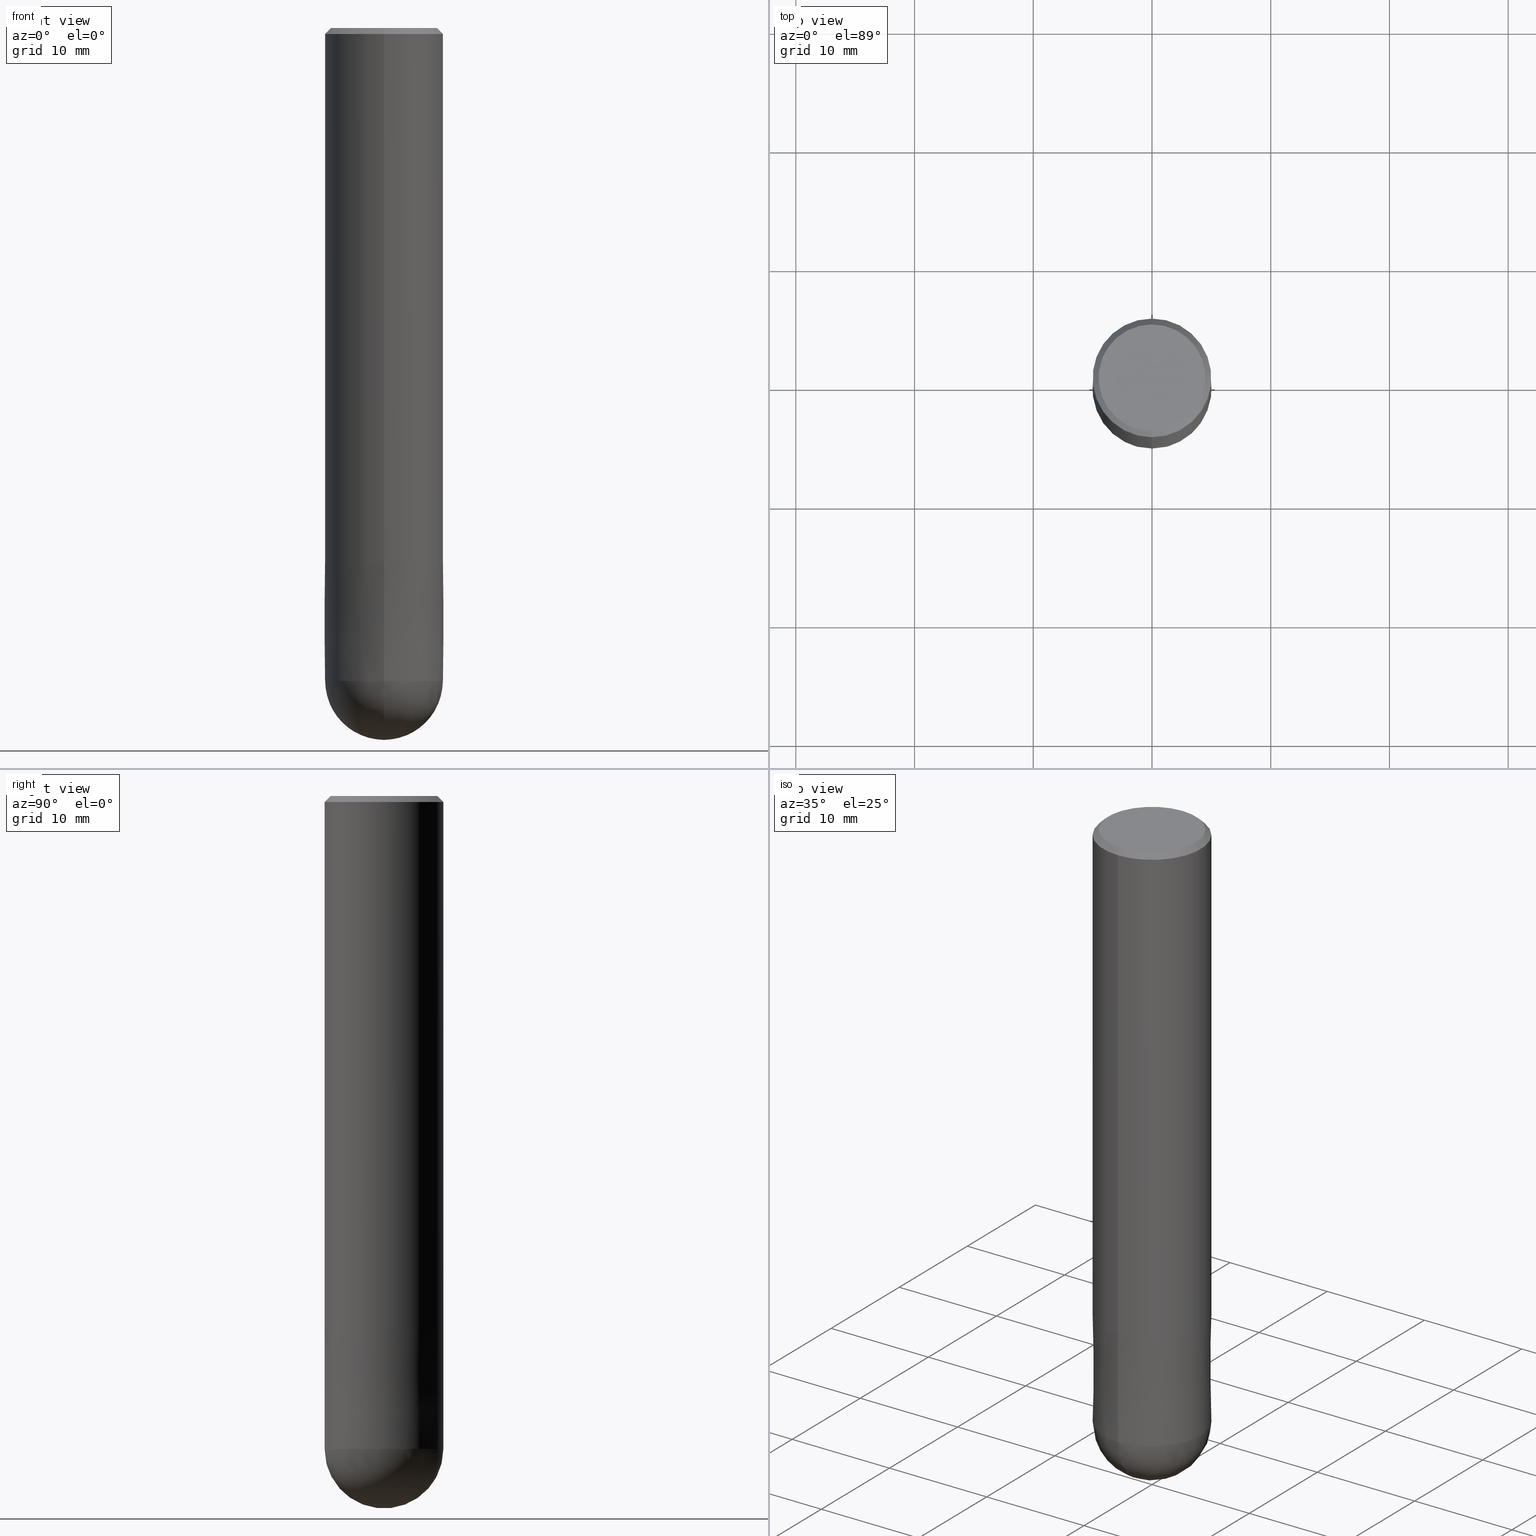
[diagram: canonical four-view strip — front | top / right | iso, engineering-drawing reading convention]
A machine part, canonical four-view strip (front | top / right | iso — engineering-drawing reading convention). The complete STEP part file that produces these views, byte-faithful:
ISO-10303-21;
HEADER;
FILE_DESCRIPTION(('no description'),'unknown implementation level');
FILE_NAME('HFB4100-1500S-Huellk.stp','  ',('CIMSOURCE GmbH'),('CADClick - KiM GmbH - www.kimweb.de'),'unknown preprocess','ACIS','unknown authorization');
FILE_SCHEMA(('automotive_design'));
ENDSEC;
DATA;
#1=MECHANICAL_DESIGN_GEOMETRIC_PRESENTATION_REPRESENTATION(' ',(#10,#11,#12,#13,#14,#15,#16,#17,#18,#19,#20,#21,#22,#23,#24,#25,#26,#27,#28,#29,#30,#31,#32,#33,#34,#35,#36,#37,#38,#39,#40,#41,#42,#43,#44,#45,#46,#47),#6);
#2=PRODUCT_DEFINITION_CONTEXT('',#48,'design');
#3=APPLICATION_PROTOCOL_DEFINITION('INTERNATIONAL STANDARD','automotive_design',1994,#48);
#4=PRODUCT_CATEGORY_RELATIONSHIP('NONE','NONE',#49,#50);
#5=SHAPE_DEFINITION_REPRESENTATION(#51,#52);
#6= (GEOMETRIC_REPRESENTATION_CONTEXT(3)GLOBAL_UNCERTAINTY_ASSIGNED_CONTEXT((#55))GLOBAL_UNIT_ASSIGNED_CONTEXT((#57,#58,#59))REPRESENTATION_CONTEXT('NONE','WORKSPACE'));
#10=STYLED_ITEM('',(#61),#62);
#11=STYLED_ITEM('',(#63),#64);
#12=STYLED_ITEM('',(#65),#66);
#13=STYLED_ITEM('',(#67),#68);
#14=STYLED_ITEM('',(#69),#70);
#15=STYLED_ITEM('',(#71),#72);
#16=STYLED_ITEM('',(#73),#74);
#17=STYLED_ITEM('',(#75),#76);
#18=STYLED_ITEM('',(#77),#78);
#19=STYLED_ITEM('',(#79),#80);
#20=STYLED_ITEM('',(#81),#82);
#21=STYLED_ITEM('',(#83),#84);
#22=STYLED_ITEM('',(#85),#86);
#23=STYLED_ITEM('',(#87),#88);
#24=STYLED_ITEM('',(#89),#90);
#25=STYLED_ITEM('',(#91),#92);
#26=STYLED_ITEM('',(#93),#94);
#27=STYLED_ITEM('',(#95),#96);
#28=STYLED_ITEM('',(#97),#98);
#29=STYLED_ITEM('',(#99),#100);
#30=STYLED_ITEM('',(#101),#102);
#31=STYLED_ITEM('',(#103),#104);
#32=STYLED_ITEM('',(#105),#106);
#33=STYLED_ITEM('',(#107),#108);
#34=STYLED_ITEM('',(#109),#110);
#35=STYLED_ITEM('',(#111),#112);
#36=STYLED_ITEM('',(#113),#114);
#37=STYLED_ITEM('',(#115),#116);
#38=STYLED_ITEM('',(#117),#118);
#39=STYLED_ITEM('',(#119),#120);
#40=STYLED_ITEM('',(#121),#122);
#41=STYLED_ITEM('',(#123),#124);
#42=STYLED_ITEM('',(#125),#126);
#43=STYLED_ITEM('',(#127),#128);
#44=STYLED_ITEM('',(#129),#130);
#45=STYLED_ITEM('',(#131),#132);
#46=STYLED_ITEM('',(#133),#134);
#47=STYLED_ITEM('',(#135),#136);
#48=APPLICATION_CONTEXT(' ');
#49=PRODUCT_CATEGORY('part','NONE');
#50=PRODUCT_RELATED_PRODUCT_CATEGORY('detail',' ',(#137));
#51=PRODUCT_DEFINITION_SHAPE('NONE','NONE',#138);
#52=ADVANCED_BREP_SHAPE_REPRESENTATION('1',(#112,#139),#6);
#55=UNCERTAINTY_MEASURE_WITH_UNIT(LENGTH_MEASURE(1.0E-006),#57,'','');
#57= (CONVERSION_BASED_UNIT('MILLIMETRE',#142)LENGTH_UNIT()NAMED_UNIT(#145));
#58= (NAMED_UNIT(#147)PLANE_ANGLE_UNIT()SI_UNIT($,.RADIAN.));
#59= (NAMED_UNIT(#147)SOLID_ANGLE_UNIT()SI_UNIT($,.STERADIAN.));
#61=PRESENTATION_STYLE_ASSIGNMENT((#153));
#62=EDGE_CURVE('',#124,#88,#154,.T.);
#63=PRESENTATION_STYLE_ASSIGNMENT((#155));
#64=EDGE_CURVE('',#92,#86,#156,.T.);
#65=PRESENTATION_STYLE_ASSIGNMENT((#157));
#66=EDGE_CURVE('',#76,#110,#158,.T.);
#67=PRESENTATION_STYLE_ASSIGNMENT((#159));
#68=EDGE_CURVE('',#110,#76,#160,.T.);
#69=PRESENTATION_STYLE_ASSIGNMENT((#161));
#70=EDGE_CURVE('',#124,#86,#162,.T.);
#71=PRESENTATION_STYLE_ASSIGNMENT((#163));
#72=EDGE_CURVE('',#86,#124,#164,.T.);
#73=PRESENTATION_STYLE_ASSIGNMENT((#165));
#74=EDGE_CURVE('',#80,#134,#166,.T.);
#75=PRESENTATION_STYLE_ASSIGNMENT((#167));
#76=VERTEX_POINT('',#168);
#77=PRESENTATION_STYLE_ASSIGNMENT((#169));
#78=EDGE_CURVE('',#92,#88,#170,.T.);
#79=PRESENTATION_STYLE_ASSIGNMENT((#171));
#80=VERTEX_POINT('',#172);
#81=PRESENTATION_STYLE_ASSIGNMENT((#173));
#82=EDGE_CURVE('',#88,#92,#174,.T.);
#83=PRESENTATION_STYLE_ASSIGNMENT((#175));
#84=ADVANCED_FACE('',(#176),#177,.T.);
#85=PRESENTATION_STYLE_ASSIGNMENT((#178));
#86=VERTEX_POINT('',#179);
#87=PRESENTATION_STYLE_ASSIGNMENT((#180));
#88=VERTEX_POINT('',#181);
#89=PRESENTATION_STYLE_ASSIGNMENT((#182));
#90=VERTEX_POINT('',#183);
#91=PRESENTATION_STYLE_ASSIGNMENT((#184));
#92=VERTEX_POINT('',#185);
#93=PRESENTATION_STYLE_ASSIGNMENT((#186));
#94=ADVANCED_FACE('',(#187),#188,.T.);
#95=PRESENTATION_STYLE_ASSIGNMENT((#189));
#96=ADVANCED_FACE('',(#190),#191,.T.);
#97=PRESENTATION_STYLE_ASSIGNMENT((#192));
#98=EDGE_CURVE('',#134,#126,#193,.T.);
#99=PRESENTATION_STYLE_ASSIGNMENT((#194));
#100=EDGE_CURVE('',#110,#92,#195,.T.);
#101=PRESENTATION_STYLE_ASSIGNMENT((#196));
#102=EDGE_CURVE('',#134,#80,#197,.T.);
#103=PRESENTATION_STYLE_ASSIGNMENT((#198));
#104=ADVANCED_FACE('',(#199),#200,.T.);
#105=PRESENTATION_STYLE_ASSIGNMENT((#201));
#106=EDGE_CURVE('',#90,#126,#202,.T.);
#107=PRESENTATION_STYLE_ASSIGNMENT((#203));
#108=ADVANCED_FACE('',(#204),#205,.T.);
#109=PRESENTATION_STYLE_ASSIGNMENT((#206));
#110=VERTEX_POINT('',#207);
#111=PRESENTATION_STYLE_ASSIGNMENT((#208));
#112=MANIFOLD_SOLID_BREP('1',#209);
#113=PRESENTATION_STYLE_ASSIGNMENT((#210));
#114=EDGE_CURVE('',#126,#90,#211,.T.);
#115=PRESENTATION_STYLE_ASSIGNMENT((#212));
#116=EDGE_CURVE('',#90,#126,#213,.T.);
#117=PRESENTATION_STYLE_ASSIGNMENT((#214));
#118=EDGE_CURVE('',#90,#80,#215,.T.);
#119=PRESENTATION_STYLE_ASSIGNMENT((#216));
#120=ADVANCED_FACE('',(#217),#218,.T.);
#121=PRESENTATION_STYLE_ASSIGNMENT((#219));
#122=ADVANCED_FACE('',(#220),#221,.T.);
#123=PRESENTATION_STYLE_ASSIGNMENT((#222));
#124=VERTEX_POINT('',#223);
#125=PRESENTATION_STYLE_ASSIGNMENT((#224));
#126=VERTEX_POINT('',#225);
#127=PRESENTATION_STYLE_ASSIGNMENT((#226));
#128=ADVANCED_FACE('',(#227,#228),#229,.T.);
#129=PRESENTATION_STYLE_ASSIGNMENT((#230));
#130=EDGE_CURVE('',#88,#76,#231,.T.);
#131=PRESENTATION_STYLE_ASSIGNMENT((#232));
#132=ADVANCED_FACE('',(#233),#234,.T.);
#133=PRESENTATION_STYLE_ASSIGNMENT((#235));
#134=VERTEX_POINT('',#236);
#135=PRESENTATION_STYLE_ASSIGNMENT((#237));
#136=ADVANCED_FACE('',(#238),#239,.T.);
#137=PRODUCT('1','1','PART-1-DESC',(#240));
#138=PRODUCT_DEFINITION('NONE','NONE',#241,#2);
#139=AXIS2_PLACEMENT_3D('',#242,#243,#244);
#142=LENGTH_MEASURE_WITH_UNIT(LENGTH_MEASURE(1.0),#245);
#145=DIMENSIONAL_EXPONENTS(1.0,0.0,0.0,0.0,0.0,0.0,0.0);
#147=DIMENSIONAL_EXPONENTS(0.0,0.0,0.0,0.0,0.0,0.0,0.0);
#153=CURVE_STYLE('',#246,POSITIVE_LENGTH_MEASURE(1.0E-006),#247);
#154=LINE('',#248,#249);
#155=CURVE_STYLE('',#250,POSITIVE_LENGTH_MEASURE(1.0E-006),#251);
#156=LINE('',#252,#253);
#157=CURVE_STYLE('',#254,POSITIVE_LENGTH_MEASURE(1.0E-006),#255);
#158=CIRCLE('',#256,5.0);
#159=CURVE_STYLE('',#257,POSITIVE_LENGTH_MEASURE(1.0E-006),#258);
#160=CIRCLE('',#259,5.0);
#161=CURVE_STYLE('',#260,POSITIVE_LENGTH_MEASURE(1.0E-006),#261);
#162=CIRCLE('',#262,4.5);
#163=CURVE_STYLE('',#263,POSITIVE_LENGTH_MEASURE(1.0E-006),#264);
#164=CIRCLE('',#265,4.5);
#165=CURVE_STYLE('',#266,POSITIVE_LENGTH_MEASURE(1.0E-006),#267);
#166=CIRCLE('',#268,4.9999);
#167=POINT_STYLE(' ',#269,POSITIVE_LENGTH_MEASURE(1.0E-006),#270);
#168=CARTESIAN_POINT('',(0.0,5.0,-45.0));
#169=CURVE_STYLE('',#271,POSITIVE_LENGTH_MEASURE(1.0E-006),#272);
#170=CIRCLE('',#273,5.0);
#171=POINT_STYLE(' ',#274,POSITIVE_LENGTH_MEASURE(1.0E-006),#275);
#172=CARTESIAN_POINT('',(6.1229093084765E-016,-4.9999,-45.0));
#173=CURVE_STYLE('',#276,POSITIVE_LENGTH_MEASURE(1.0E-006),#277);
#174=CIRCLE('',#278,5.0);
#175=SURFACE_STYLE_USAGE(.BOTH.,#279);
#176=FACE_OUTER_BOUND('',#280,.T.);
#177=CONICAL_SURFACE('',#281,4.75,0.785398163397448);
#178=POINT_STYLE(' ',#282,POSITIVE_LENGTH_MEASURE(1.0E-006),#283);
#179=CARTESIAN_POINT('',(5.5107285922007E-016,-4.5,0.0));
#180=POINT_STYLE(' ',#284,POSITIVE_LENGTH_MEASURE(1.0E-006),#285);
#181=CARTESIAN_POINT('',(0.0,5.0,-0.5));
#182=POINT_STYLE(' ',#286,POSITIVE_LENGTH_MEASURE(1.0E-006),#287);
#183=CARTESIAN_POINT('',(6.12303176911188E-016,-5.0,-55.0));
#184=POINT_STYLE(' ',#288,POSITIVE_LENGTH_MEASURE(1.0E-006),#289);
#185=CARTESIAN_POINT('',(6.12303176911189E-016,-5.0,-0.5));
#186=SURFACE_STYLE_USAGE(.BOTH.,#290);
#187=FACE_OUTER_BOUND('',#291,.T.);
#188=CONICAL_SURFACE('',#292,4.99995,9.99999999973218E-006);
#189=SURFACE_STYLE_USAGE(.BOTH.,#293);
#190=FACE_OUTER_BOUND('',#294,.T.);
#191=SPHERICAL_SURFACE('',#295,4.99999999999999);
#192=CURVE_STYLE('',#296,POSITIVE_LENGTH_MEASURE(1.0E-006),#297);
#193=LINE('',#298,#299);
#194=CURVE_STYLE('',#300,POSITIVE_LENGTH_MEASURE(1.0E-006),#301);
#195=LINE('',#302,#303);
#196=CURVE_STYLE('',#304,POSITIVE_LENGTH_MEASURE(1.0E-006),#305);
#197=CIRCLE('',#306,4.9999);
#198=SURFACE_STYLE_USAGE(.BOTH.,#307);
#199=FACE_OUTER_BOUND('',#308,.T.);
#200=CONICAL_SURFACE('',#309,4.75,0.785398163397448);
#201=CURVE_STYLE('',#310,POSITIVE_LENGTH_MEASURE(1.0E-006),#311);
#202=CIRCLE('',#312,5.0);
#203=SURFACE_STYLE_USAGE(.BOTH.,#313);
#204=FACE_OUTER_BOUND('',#314,.T.);
#205=CYLINDRICAL_SURFACE('',#315,5.0);
#206=POINT_STYLE(' ',#316,POSITIVE_LENGTH_MEASURE(1.0E-006),#317);
#207=CARTESIAN_POINT('',(6.12303176911189E-016,-5.0,-45.0));
#208=SURFACE_STYLE_USAGE(.BOTH.,#318);
#209=CLOSED_SHELL('',(#96,#94,#108,#104,#128,#120,#84,#132,#122,#136));
#210=CURVE_STYLE('',#319,POSITIVE_LENGTH_MEASURE(1.0E-006),#320);
#211=CIRCLE('',#321,5.0);
#212=CURVE_STYLE('',#322,POSITIVE_LENGTH_MEASURE(1.0E-006),#323);
#213=CIRCLE('',#324,4.99999999999999);
#214=CURVE_STYLE('',#325,POSITIVE_LENGTH_MEASURE(1.0E-006),#326);
#215=LINE('',#327,#328);
#216=SURFACE_STYLE_USAGE(.BOTH.,#329);
#217=FACE_OUTER_BOUND('',#330,.T.);
#218=PLANE('',#331);
#219=SURFACE_STYLE_USAGE(.BOTH.,#332);
#220=FACE_OUTER_BOUND('',#333,.T.);
#221=CONICAL_SURFACE('',#334,4.99995,9.99999999973218E-006);
#222=POINT_STYLE(' ',#335,POSITIVE_LENGTH_MEASURE(1.0E-006),#336);
#223=CARTESIAN_POINT('',(0.0,4.5,0.0));
#224=POINT_STYLE(' ',#337,POSITIVE_LENGTH_MEASURE(1.0E-006),#338);
#225=CARTESIAN_POINT('',(0.0,5.0,-55.0));
#226=SURFACE_STYLE_USAGE(.BOTH.,#339);
#227=FACE_OUTER_BOUND('',#340,.T.);
#228=FACE_BOUND('',#341,.T.);
#229=PLANE('',#342);
#230=CURVE_STYLE('',#343,POSITIVE_LENGTH_MEASURE(1.0E-006),#344);
#231=LINE('',#345,#346);
#232=SURFACE_STYLE_USAGE(.BOTH.,#347);
#233=FACE_OUTER_BOUND('',#348,.T.);
#234=CYLINDRICAL_SURFACE('',#349,5.0);
#235=POINT_STYLE(' ',#350,POSITIVE_LENGTH_MEASURE(1.0E-006),#351);
#236=CARTESIAN_POINT('',(0.0,4.9999,-45.0));
#237=SURFACE_STYLE_USAGE(.BOTH.,#352);
#238=FACE_OUTER_BOUND('',#353,.T.);
#239=SPHERICAL_SURFACE('',#354,4.99999999999999);
#240=PRODUCT_CONTEXT('',#48,'mechanical');
#241=PRODUCT_DEFINITION_FORMATION_WITH_SPECIFIED_SOURCE(' ','NONE',#137,.NOT_KNOWN.);
#242=CARTESIAN_POINT('',(0.0,0.0,0.0));
#243=DIRECTION('',(0.0,0.0,1.0));
#244=DIRECTION('',(1.0,0.0,0.0));
#245= (NAMED_UNIT(#145)LENGTH_UNIT()SI_UNIT(.MILLI.,.METRE.));
#246=DRAUGHTING_PRE_DEFINED_CURVE_FONT('continuous');
#247=COLOUR_RGB('',0.498039215803146,0.498039215803146,0.498039215803146);
#248=CARTESIAN_POINT('',(-5.81688018065629E-016,4.75,-0.25));
#249=VECTOR('',#356,1.0);
#250=DRAUGHTING_PRE_DEFINED_CURVE_FONT('continuous');
#251=COLOUR_RGB('',0.498039215803146,0.498039215803146,0.498039215803146);
#252=CARTESIAN_POINT('',(5.81688018065629E-016,-4.75,-0.25));
#253=VECTOR('',#357,1.0);
#254=DRAUGHTING_PRE_DEFINED_CURVE_FONT('continuous');
#255=COLOUR_RGB('',0.498039215803146,0.498039215803146,0.498039215803146);
#256=AXIS2_PLACEMENT_3D('',#358,#359,#360);
#257=DRAUGHTING_PRE_DEFINED_CURVE_FONT('continuous');
#258=COLOUR_RGB('',0.498039215803146,0.498039215803146,0.498039215803146);
#259=AXIS2_PLACEMENT_3D('',#361,#362,#363);
#260=DRAUGHTING_PRE_DEFINED_CURVE_FONT('continuous');
#261=COLOUR_RGB('',0.498039215803146,0.498039215803146,0.498039215803146);
#262=AXIS2_PLACEMENT_3D('',#364,#365,#366);
#263=DRAUGHTING_PRE_DEFINED_CURVE_FONT('continuous');
#264=COLOUR_RGB('',0.498039215803146,0.498039215803146,0.498039215803146);
#265=AXIS2_PLACEMENT_3D('',#367,#368,#369);
#266=DRAUGHTING_PRE_DEFINED_CURVE_FONT('continuous');
#267=COLOUR_RGB('',0.800000011920929,0.800000011920929,0.800000011920929);
#268=AXIS2_PLACEMENT_3D('',#370,#371,#372);
#269=PRE_DEFINED_MARKER('');
#270=COLOUR_RGB('',0.498039215803146,0.498039215803146,0.498039215803146);
#271=DRAUGHTING_PRE_DEFINED_CURVE_FONT('continuous');
#272=COLOUR_RGB('',0.498039215803146,0.498039215803146,0.498039215803146);
#273=AXIS2_PLACEMENT_3D('',#373,#374,#375);
#274=PRE_DEFINED_MARKER('');
#275=COLOUR_RGB('',0.800000011920929,0.800000011920929,0.800000011920929);
#276=DRAUGHTING_PRE_DEFINED_CURVE_FONT('continuous');
#277=COLOUR_RGB('',0.498039215803146,0.498039215803146,0.498039215803146);
#278=AXIS2_PLACEMENT_3D('',#376,#377,#378);
#279=SURFACE_SIDE_STYLE('',(#379));
#280=EDGE_LOOP('',(#380,#381,#382,#383));
#281=AXIS2_PLACEMENT_3D('',#384,#385,#386);
#282=PRE_DEFINED_MARKER('');
#283=COLOUR_RGB('',0.498039215803146,0.498039215803146,0.498039215803146);
#284=PRE_DEFINED_MARKER('');
#285=COLOUR_RGB('',0.498039215803146,0.498039215803146,0.498039215803146);
#286=PRE_DEFINED_MARKER('');
#287=COLOUR_RGB('',0.800000011920929,0.800000011920929,0.800000011920929);
#288=PRE_DEFINED_MARKER('');
#289=COLOUR_RGB('',0.498039215803146,0.498039215803146,0.498039215803146);
#290=SURFACE_SIDE_STYLE('',(#387));
#291=EDGE_LOOP('',(#388,#389,#390,#391));
#292=AXIS2_PLACEMENT_3D('',#392,#393,#394);
#293=SURFACE_SIDE_STYLE('',(#395));
#294=EDGE_LOOP('',(#396,#397));
#295=AXIS2_PLACEMENT_3D('',#398,#399,#400);
#296=DRAUGHTING_PRE_DEFINED_CURVE_FONT('continuous');
#297=COLOUR_RGB('',0.800000011920929,0.800000011920929,0.800000011920929);
#298=CARTESIAN_POINT('',(-6.12297053879419E-016,4.99995,-50.0));
#299=VECTOR('',#401,1.0);
#300=DRAUGHTING_PRE_DEFINED_CURVE_FONT('continuous');
#301=COLOUR_RGB('',0.498039215803146,0.498039215803146,0.498039215803146);
#302=CARTESIAN_POINT('',(6.12303176911189E-016,-5.0,-22.75));
#303=VECTOR('',#402,1.0);
#304=DRAUGHTING_PRE_DEFINED_CURVE_FONT('continuous');
#305=COLOUR_RGB('',0.800000011920929,0.800000011920929,0.800000011920929);
#306=AXIS2_PLACEMENT_3D('',#403,#404,#405);
#307=SURFACE_SIDE_STYLE('',(#406));
#308=EDGE_LOOP('',(#407,#408,#409,#410));
#309=AXIS2_PLACEMENT_3D('',#411,#412,#413);
#310=DRAUGHTING_PRE_DEFINED_CURVE_FONT('continuous');
#311=COLOUR_RGB('',0.800000011920929,0.800000011920929,0.800000011920929);
#312=AXIS2_PLACEMENT_3D('',#414,#415,#416);
#313=SURFACE_SIDE_STYLE('',(#417));
#314=EDGE_LOOP('',(#418,#419,#420,#421));
#315=AXIS2_PLACEMENT_3D('',#422,#423,#424);
#316=PRE_DEFINED_MARKER('');
#317=COLOUR_RGB('',0.498039215803146,0.498039215803146,0.498039215803146);
#318=SURFACE_SIDE_STYLE('',(#425));
#319=DRAUGHTING_PRE_DEFINED_CURVE_FONT('continuous');
#320=COLOUR_RGB('',0.800000011920929,0.800000011920929,0.800000011920929);
#321=AXIS2_PLACEMENT_3D('',#426,#427,#428);
#322=DRAUGHTING_PRE_DEFINED_CURVE_FONT('continuous');
#323=COLOUR_RGB('',0.800000011920929,0.800000011920929,0.800000011920929);
#324=AXIS2_PLACEMENT_3D('',#429,#430,#431);
#325=DRAUGHTING_PRE_DEFINED_CURVE_FONT('continuous');
#326=COLOUR_RGB('',0.800000011920929,0.800000011920929,0.800000011920929);
#327=CARTESIAN_POINT('',(6.12297053879419E-016,-4.99995,-50.0));
#328=VECTOR('',#432,1.0);
#329=SURFACE_SIDE_STYLE('',(#433));
#330=EDGE_LOOP('',(#434,#435));
#331=AXIS2_PLACEMENT_3D('',#436,#437,#438);
#332=SURFACE_SIDE_STYLE('',(#439));
#333=EDGE_LOOP('',(#440,#441,#442,#443));
#334=AXIS2_PLACEMENT_3D('',#444,#445,#446);
#335=PRE_DEFINED_MARKER('');
#336=COLOUR_RGB('',0.498039215803146,0.498039215803146,0.498039215803146);
#337=PRE_DEFINED_MARKER('');
#338=COLOUR_RGB('',0.800000011920929,0.800000011920929,0.800000011920929);
#339=SURFACE_SIDE_STYLE('',(#447));
#340=EDGE_LOOP('',(#448,#449));
#341=EDGE_LOOP('',(#450,#451));
#342=AXIS2_PLACEMENT_3D('',#452,#453,#454);
#343=DRAUGHTING_PRE_DEFINED_CURVE_FONT('continuous');
#344=COLOUR_RGB('',0.498039215803146,0.498039215803146,0.498039215803146);
#345=CARTESIAN_POINT('',(-6.12303176911189E-016,5.0,-22.75));
#346=VECTOR('',#455,1.0);
#347=SURFACE_SIDE_STYLE('',(#456));
#348=EDGE_LOOP('',(#457,#458,#459,#460));
#349=AXIS2_PLACEMENT_3D('',#461,#462,#463);
#350=PRE_DEFINED_MARKER('');
#351=COLOUR_RGB('',0.800000011920929,0.800000011920929,0.800000011920929);
#352=SURFACE_SIDE_STYLE('',(#464));
#353=EDGE_LOOP('',(#465,#466));
#354=AXIS2_PLACEMENT_3D('',#467,#468,#469);
#356=DIRECTION('',(-8.65927457071936E-017,0.707106781186548,-0.707106781186548));
#357=DIRECTION('',(-8.65927457071936E-017,0.707106781186548,0.707106781186548));
#358=CARTESIAN_POINT('',(0.0,0.0,-45.0));
#359=DIRECTION('',(0.0,0.0,-1.0));
#360=DIRECTION('',(0.0,1.0,0.0));
#361=CARTESIAN_POINT('',(0.0,0.0,-45.0));
#362=DIRECTION('',(0.0,0.0,-1.0));
#363=DIRECTION('',(0.0,1.0,0.0));
#364=CARTESIAN_POINT('',(0.0,0.0,0.0));
#365=DIRECTION('',(0.0,0.0,-1.0));
#366=DIRECTION('',(0.0,1.0,0.0));
#367=CARTESIAN_POINT('',(0.0,0.0,0.0));
#368=DIRECTION('',(0.0,0.0,-1.0));
#369=DIRECTION('',(0.0,1.0,0.0));
#370=CARTESIAN_POINT('',(0.0,0.0,-45.0));
#371=DIRECTION('',(0.0,0.0,-1.0));
#372=DIRECTION('',(0.0,1.0,0.0));
#373=CARTESIAN_POINT('',(0.0,0.0,-0.5));
#374=DIRECTION('',(0.0,0.0,-1.0));
#375=DIRECTION('',(0.0,1.0,0.0));
#376=CARTESIAN_POINT('',(0.0,0.0,-0.5));
#377=DIRECTION('',(0.0,0.0,-1.0));
#378=DIRECTION('',(0.0,1.0,0.0));
#379=SURFACE_STYLE_FILL_AREA(#470);
#380=ORIENTED_EDGE('',*,*,#62,.T.);
#381=ORIENTED_EDGE('',*,*,#78,.F.);
#382=ORIENTED_EDGE('',*,*,#64,.T.);
#383=ORIENTED_EDGE('',*,*,#72,.T.);
#384=CARTESIAN_POINT('',(0.0,0.0,-0.25));
#385=DIRECTION('',(0.0,-0.0,-1.0));
#386=DIRECTION('',(0.0,1.0,0.0));
#387=SURFACE_STYLE_FILL_AREA(#471);
#388=ORIENTED_EDGE('',*,*,#98,.F.);
#389=ORIENTED_EDGE('',*,*,#102,.T.);
#390=ORIENTED_EDGE('',*,*,#118,.F.);
#391=ORIENTED_EDGE('',*,*,#114,.F.);
#392=CARTESIAN_POINT('',(0.0,0.0,-50.0));
#393=DIRECTION('',(0.0,-0.0,-1.0));
#394=DIRECTION('',(0.0,1.0,0.0));
#395=SURFACE_STYLE_FILL_AREA(#472);
#396=ORIENTED_EDGE('',*,*,#116,.F.);
#397=ORIENTED_EDGE('',*,*,#106,.T.);
#398=CARTESIAN_POINT('',(0.0,0.0,-55.0));
#399=DIRECTION('',(0.0,1.0,0.0));
#400=DIRECTION('',(0.0,0.0,-1.0));
#401=DIRECTION('',(-1.22460635376917E-021,9.99999999956551E-006,-0.99999999995));
#402=DIRECTION('',(-0.0,-0.0,1.0));
#403=CARTESIAN_POINT('',(0.0,0.0,-45.0));
#404=DIRECTION('',(0.0,0.0,-1.0));
#405=DIRECTION('',(0.0,1.0,0.0));
#406=SURFACE_STYLE_FILL_AREA(#473);
#407=ORIENTED_EDGE('',*,*,#62,.F.);
#408=ORIENTED_EDGE('',*,*,#70,.T.);
#409=ORIENTED_EDGE('',*,*,#64,.F.);
#410=ORIENTED_EDGE('',*,*,#82,.F.);
#411=CARTESIAN_POINT('',(0.0,0.0,-0.25));
#412=DIRECTION('',(0.0,-0.0,-1.0));
#413=DIRECTION('',(0.0,1.0,0.0));
#414=CARTESIAN_POINT('',(0.0,0.0,-55.0));
#415=DIRECTION('',(0.0,0.0,-1.0));
#416=DIRECTION('',(0.0,1.0,0.0));
#417=SURFACE_STYLE_FILL_AREA(#474);
#418=ORIENTED_EDGE('',*,*,#130,.F.);
#419=ORIENTED_EDGE('',*,*,#82,.T.);
#420=ORIENTED_EDGE('',*,*,#100,.F.);
#421=ORIENTED_EDGE('',*,*,#66,.F.);
#422=CARTESIAN_POINT('',(0.0,0.0,-22.75));
#423=DIRECTION('',(-0.0,-0.0,1.0));
#424=DIRECTION('',(0.0,1.0,0.0));
#425=SURFACE_STYLE_FILL_AREA(#475);
#426=CARTESIAN_POINT('',(0.0,0.0,-55.0));
#427=DIRECTION('',(0.0,0.0,-1.0));
#428=DIRECTION('',(0.0,1.0,0.0));
#429=CARTESIAN_POINT('',(0.0,0.0,-55.0));
#430=DIRECTION('',(1.0,0.0,1.22460635382238E-016));
#431=DIRECTION('',(-1.22460635382238E-016,0.0,1.0));
#432=DIRECTION('',(-1.22460635376917E-021,9.99999999956551E-006,0.99999999995));
#433=SURFACE_STYLE_FILL_AREA(#476);
#434=ORIENTED_EDGE('',*,*,#70,.F.);
#435=ORIENTED_EDGE('',*,*,#72,.F.);
#436=CARTESIAN_POINT('',(0.0,2.25,0.0));
#437=DIRECTION('',(-0.0,0.0,1.0));
#438=DIRECTION('',(0.0,-1.0,0.0));
#439=SURFACE_STYLE_FILL_AREA(#477);
#440=ORIENTED_EDGE('',*,*,#98,.T.);
#441=ORIENTED_EDGE('',*,*,#106,.F.);
#442=ORIENTED_EDGE('',*,*,#118,.T.);
#443=ORIENTED_EDGE('',*,*,#74,.T.);
#444=CARTESIAN_POINT('',(0.0,0.0,-50.0));
#445=DIRECTION('',(0.0,-0.0,-1.0));
#446=DIRECTION('',(0.0,1.0,0.0));
#447=SURFACE_STYLE_FILL_AREA(#478);
#448=ORIENTED_EDGE('',*,*,#66,.T.);
#449=ORIENTED_EDGE('',*,*,#68,.T.);
#450=ORIENTED_EDGE('',*,*,#102,.F.);
#451=ORIENTED_EDGE('',*,*,#74,.F.);
#452=CARTESIAN_POINT('',(0.0,2.5,-45.0));
#453=DIRECTION('',(0.0,0.0,-1.0));
#454=DIRECTION('',(0.0,1.0,0.0));
#455=DIRECTION('',(0.0,0.0,-1.0));
#456=SURFACE_STYLE_FILL_AREA(#479);
#457=ORIENTED_EDGE('',*,*,#130,.T.);
#458=ORIENTED_EDGE('',*,*,#68,.F.);
#459=ORIENTED_EDGE('',*,*,#100,.T.);
#460=ORIENTED_EDGE('',*,*,#78,.T.);
#461=CARTESIAN_POINT('',(0.0,0.0,-22.75));
#462=DIRECTION('',(-0.0,-0.0,1.0));
#463=DIRECTION('',(0.0,1.0,0.0));
#464=SURFACE_STYLE_FILL_AREA(#480);
#465=ORIENTED_EDGE('',*,*,#116,.T.);
#466=ORIENTED_EDGE('',*,*,#114,.T.);
#467=CARTESIAN_POINT('',(0.0,0.0,-55.0));
#468=DIRECTION('',(0.0,1.0,0.0));
#469=DIRECTION('',(0.0,0.0,-1.0));
#470=FILL_AREA_STYLE('',(#481));
#471=FILL_AREA_STYLE('',(#482));
#472=FILL_AREA_STYLE('',(#483));
#473=FILL_AREA_STYLE('',(#484));
#474=FILL_AREA_STYLE('',(#485));
#475=FILL_AREA_STYLE('',(#486));
#476=FILL_AREA_STYLE('',(#487));
#477=FILL_AREA_STYLE('',(#488));
#478=FILL_AREA_STYLE('',(#489));
#479=FILL_AREA_STYLE('',(#490));
#480=FILL_AREA_STYLE('',(#491));
#481=FILL_AREA_STYLE_COLOUR('',#492);
#482=FILL_AREA_STYLE_COLOUR('',#493);
#483=FILL_AREA_STYLE_COLOUR('',#494);
#484=FILL_AREA_STYLE_COLOUR('',#495);
#485=FILL_AREA_STYLE_COLOUR('',#496);
#486=FILL_AREA_STYLE_COLOUR('',#497);
#487=FILL_AREA_STYLE_COLOUR('',#498);
#488=FILL_AREA_STYLE_COLOUR('',#499);
#489=FILL_AREA_STYLE_COLOUR('',#500);
#490=FILL_AREA_STYLE_COLOUR('',#501);
#491=FILL_AREA_STYLE_COLOUR('',#502);
#492=COLOUR_RGB('',0.498039215803146,0.498039215803146,0.498039215803146);
#493=COLOUR_RGB('',0.800000011920929,0.800000011920929,0.800000011920929);
#494=COLOUR_RGB('',0.800000011920929,0.800000011920929,0.800000011920929);
#495=COLOUR_RGB('',0.498039215803146,0.498039215803146,0.498039215803146);
#496=COLOUR_RGB('',0.498039215803146,0.498039215803146,0.498039215803146);
#497=COLOUR_RGB('',0.800000011920929,0.800000011920929,0.800000011920929);
#498=COLOUR_RGB('',0.498039215803146,0.498039215803146,0.498039215803146);
#499=COLOUR_RGB('',0.800000011920929,0.800000011920929,0.800000011920929);
#500=COLOUR_RGB('',0.498039215803146,0.498039215803146,0.498039215803146);
#501=COLOUR_RGB('',0.498039215803146,0.498039215803146,0.498039215803146);
#502=COLOUR_RGB('',0.800000011920929,0.800000011920929,0.800000011920929);
#503=AXIS2_PLACEMENT_3D('PCS',#504,#505,#506);
#504=CARTESIAN_POINT('',(0.0,0.0,0.0));
#505=DIRECTION('',(0.0,0.0,1.0));
#506=DIRECTION('',(1.0,0.0,0.0));
#507=AXIS2_PLACEMENT_3D('CIP',#508,#509,#510);
#508=CARTESIAN_POINT('',(0.0,0.0,-60.0));
#509=DIRECTION('',(0.0,0.0,1.0));
#510=DIRECTION('',(1.0,0.0,0.0));
#511=AXIS2_PLACEMENT_3D('CRP',#512,#513,#514);
#512=CARTESIAN_POINT('',(-5.0,0.0,-60.0));
#513=DIRECTION('',(0.0,0.0,1.0));
#514=DIRECTION('',(1.0,0.0,0.0));
#515=AXIS2_PLACEMENT_3D('MCS',#516,#517,#518);
#516=CARTESIAN_POINT('',(0.0,0.0,-45.0));
#517=DIRECTION('',(0.0,0.0,1.0));
#518=DIRECTION('',(1.0,0.0,0.0));
#519=CONSTRUCTIVE_GEOMETRY_REPRESENTATION_RELATIONSHIP('coordinate systems',$,#52,#520);
#520=CONSTRUCTIVE_GEOMETRY_REPRESENTATION('coordinate systems',(#503,#507,#511,#515),#6);
ENDSEC;
END-ISO-10303-21;
